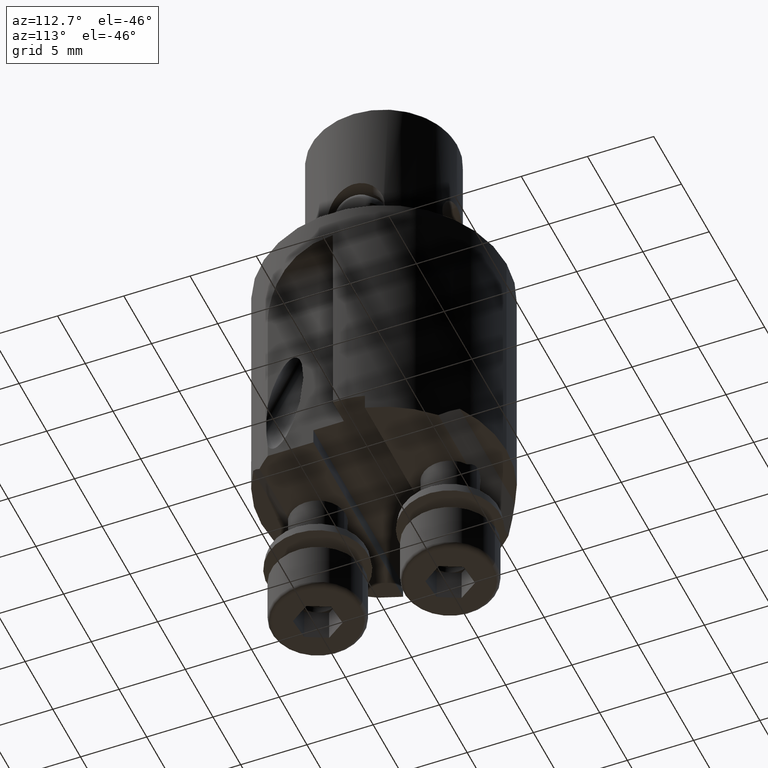
[diagram: clean part render]
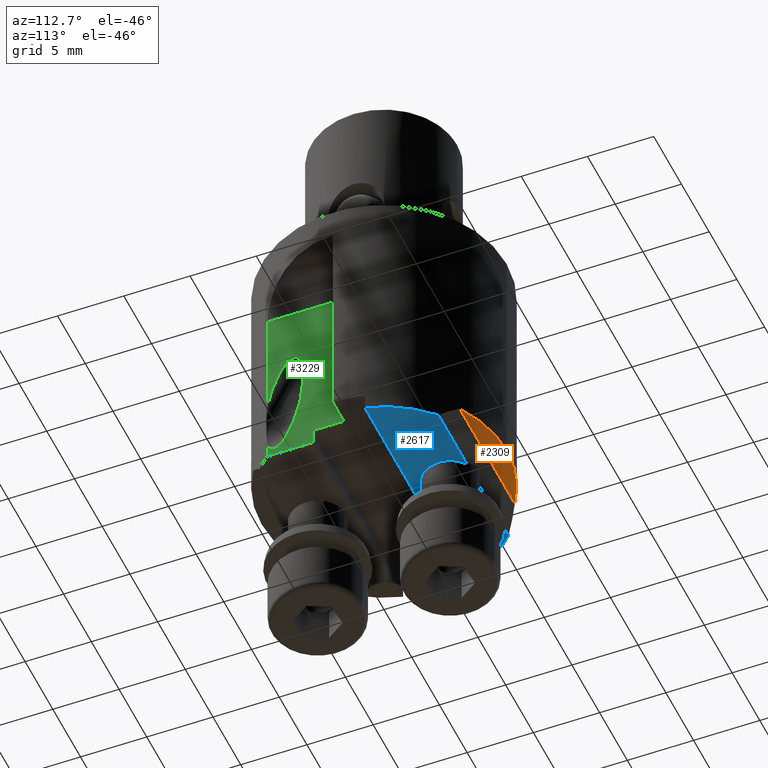
[diagram: same view with three faces highlighted in distinct colors, each labeled with its STEP entity id]
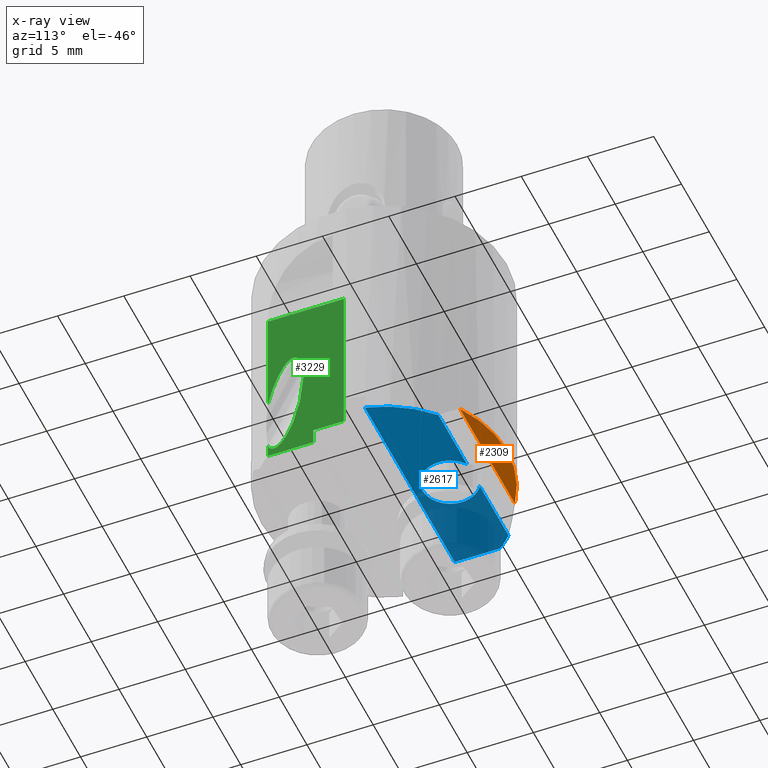
[diagram: x-ray of the same camera — body ghosted, the three highlighted faces saturated]
A machine part, auxiliary view with three faces highlighted in distinct colors.
The next image is the same camera in x-ray (body ghosted, the three faces saturated) — at least one of them is partly hidden behind the body in this view.
Their STEP definitions:

[orange] entity #2309 — the highlighted planar face has unit normal (0, -0, 1).
#1413=EDGE_CURVE('NONE',#2949,#2329,#3600,.T.);
#1419=EDGE_CURVE('NONE',#3137,#2949,#3606,.T.);
#1505=EDGE_CURVE('NONE',#2329,#3137,#3708,.T.);
#2309=ADVANCED_FACE('NONE',(#4610),#4611,.F.);
#2329=VERTEX_POINT('NONE',#4632);
#2949=VERTEX_POINT('NONE',#5317);
#3137=VERTEX_POINT('NONE',#5523);
#3600=LINE('',#6174,#6175);
#3606=CIRCLE('',#6183,9.25);
#3708=CIRCLE('',#6320,9.25);
#4610=FACE_OUTER_BOUND('',#7754,.T.);
#4611=PLANE('',#7755);
#4632=CARTESIAN_POINT('',(-4.9721725633771,7.8,-19.2));
#5317=CARTESIAN_POINT('',(4.9721725633771,7.8,-19.2));
#5523=CARTESIAN_POINT('',(0.0,9.25,-19.2));
#6174=CARTESIAN_POINT('',(9.25,7.8,-19.2));
#6175=VECTOR('',#9785,1000.0);
#6183=AXIS2_PLACEMENT_3D('',#9789,#9790,#9791);
#6320=AXIS2_PLACEMENT_3D('',#9919,#9920,#9921);
#7754=EDGE_LOOP('',(#11093,#11094,#11095));
#7755=AXIS2_PLACEMENT_3D('',#11096,#11097,#11098);
#9785=DIRECTION('',(-1.0,0.0,0.0));
#9789=CARTESIAN_POINT('',(0.0,0.0,-19.2));
#9790=DIRECTION('',(0.0,7.50150692314295E-016,-1.0));
#9791=DIRECTION('',(0.0,1.0,7.50150692314295E-016));
#9919=CARTESIAN_POINT('',(0.0,0.0,-19.2));
#9920=DIRECTION('',(-6.74199414251387E-032,7.50150692314295E-016,-1.0));
#9921=DIRECTION('',(8.88178419700125E-016,1.0,7.50150692314295E-016));
#11093=ORIENTED_EDGE('',*,*,#1505,.T.);
#11094=ORIENTED_EDGE('',*,*,#1419,.T.);
#11095=ORIENTED_EDGE('',*,*,#1413,.T.);
#11096=CARTESIAN_POINT('',(9.25,7.8,-19.2));
#11097=DIRECTION('',(0.0,-8.26058798084194E-016,1.0));
#11098=DIRECTION('',(0.0,1.0,8.26058798084194E-016));

[blue] entity #2617 — the highlighted planar face has unit normal (0, -0, 1).
#1193=VERTEX_POINT('NONE',#3354);
#1469=VERTEX_POINT('NONE',#3669);
#1497=VERTEX_POINT('NONE',#3699);
#1771=EDGE_CURVE('NONE',#1987,#2179,#4006,.T.);
#1987=VERTEX_POINT('NONE',#4245);
#2171=EDGE_CURVE('NONE',#2693,#3007,#4454,.T.);
#2179=VERTEX_POINT('NONE',#4464);
#2271=EDGE_CURVE('NONE',#1193,#1497,#4565,.T.);
#2383=VERTEX_POINT('NONE',#4691);
#2581=EDGE_CURVE('NONE',#1987,#1497,#4913,.T.);
#2617=ADVANCED_FACE('NONE',(#4952),#4953,.F.);
#2693=VERTEX_POINT('NONE',#5039);
#2835=EDGE_CURVE('NONE',#2693,#1469,#5193,.T.);
#2927=EDGE_CURVE('NONE',#3007,#2383,#5294,.T.);
#2965=EDGE_CURVE('NONE',#1469,#1193,#5336,.T.);
#2967=EDGE_CURVE('NONE',#2179,#2383,#5338,.T.);
#3007=VERTEX_POINT('NONE',#5384);
#3354=CARTESIAN_POINT('',(-7.25,5.74456264653802,-20.7));
#3669=CARTESIAN_POINT('',(-6.32488755250512,6.74968869268544,-20.7));
#3699=CARTESIAN_POINT('',(-7.25,2.3,-20.7));
#4006=CIRCLE('',#6815,9.25);
#4245=CARTESIAN_POINT('',(8.95949217310892,2.3,-20.7));
#4454=CIRCLE('',#7504,2.1);
#4464=CARTESIAN_POINT('',(6.32488755250512,6.74968869268544,-20.7));
#4565=LINE('',#7681,#7682);
#4691=CARTESIAN_POINT('',(1.16128785350089,6.74968869268544,-20.7));
#4913=LINE('',#8285,#8286);
#4952=FACE_OUTER_BOUND('',#8346,.T.);
#4953=PLANE('',#8347);
#5039=CARTESIAN_POINT('',(-1.16128785350089,6.74968869268544,-20.7));
#5193=LINE('',#8726,#8727);
#5294=CIRCLE('',#8865,2.1);
#5336=CIRCLE('',#8947,9.25);
#5338=LINE('',#8950,#8951);
#5384=CARTESIAN_POINT('',(0.0,2.9,-20.7));
#6815=AXIS2_PLACEMENT_3D('',#10326,#10327,#10328);
#7504=AXIS2_PLACEMENT_3D('',#10891,#10892,#10893);
#7681=CARTESIAN_POINT('',(-7.25,0.0,-20.7));
#7682=VECTOR('',#11026,1000.0);
#8285=CARTESIAN_POINT('',(9.25,2.3,-20.7));
#8286=VECTOR('',#11473,1000.0);
#8346=EDGE_LOOP('',(#11507,#11508,#11509,#11510,#11511,#11512,#11513,#11514));
#8347=AXIS2_PLACEMENT_3D('',#11515,#11516,#11517);
#8726=CARTESIAN_POINT('',(9.25,6.74968869268544,-20.7));
#8727=VECTOR('',#11804,1000.0);
#8865=AXIS2_PLACEMENT_3D('',#11916,#11917,#11918);
#8947=AXIS2_PLACEMENT_3D('',#11966,#11967,#11968);
#8950=CARTESIAN_POINT('',(9.25,6.74968869268544,-20.7));
#8951=VECTOR('',#11969,1000.0);
#10326=CARTESIAN_POINT('',(0.0,0.0,-20.7));
#10327=DIRECTION('',(0.0,-0.0,1.0));
#10328=DIRECTION('',(0.0,1.0,0.0));
#10891=CARTESIAN_POINT('',(0.0,5.0,-20.7));
#10892=DIRECTION('',(0.0,-0.0,1.0));
#10893=DIRECTION('',(0.0,1.0,0.0));
#11026=DIRECTION('',(0.0,-1.0,0.0));
#11473=DIRECTION('',(-1.0,0.0,0.0));
#11507=ORIENTED_EDGE('',*,*,#2835,.F.);
#11508=ORIENTED_EDGE('',*,*,#2171,.T.);
#11509=ORIENTED_EDGE('',*,*,#2927,.T.);
#11510=ORIENTED_EDGE('',*,*,#2967,.F.);
#11511=ORIENTED_EDGE('',*,*,#1771,.F.);
#11512=ORIENTED_EDGE('',*,*,#2581,.T.);
#11513=ORIENTED_EDGE('',*,*,#2271,.F.);
#11514=ORIENTED_EDGE('',*,*,#2965,.F.);
#11515=CARTESIAN_POINT('',(0.0,0.0,-20.7));
#11516=DIRECTION('',(0.0,-0.0,1.0));
#11517=DIRECTION('',(0.0,1.0,0.0));
#11804=DIRECTION('',(-1.0,0.0,0.0));
#11916=CARTESIAN_POINT('',(0.0,5.0,-20.7));
#11917=DIRECTION('',(0.0,-0.0,1.0));
#11918=DIRECTION('',(0.0,1.0,0.0));
#11966=CARTESIAN_POINT('',(0.0,0.0,-20.7));
#11967=DIRECTION('',(0.0,-0.0,1.0));
#11968=DIRECTION('',(0.0,1.0,0.0));
#11969=DIRECTION('',(-1.0,0.0,0.0));

[green] entity #3229 — the highlighted planar face has unit normal (-1, 0, 0).
#1197=EDGE_CURVE('NONE',#2121,#2409,#3358,.T.);
#1267=EDGE_CURVE('NONE',#3165,#1397,#3437,.T.);
#1367=EDGE_CURVE('NONE',#2215,#1651,#3550,.T.);
#1397=VERTEX_POINT('NONE',#3583);
#1421=EDGE_CURVE('NONE',#2119,#2453,#3608,.T.);
#1651=VERTEX_POINT('NONE',#3871);
#1759=EDGE_CURVE('NONE',#2121,#3125,#3994,.T.);
#1761=VERTEX_POINT('NONE',#3996);
#1857=EDGE_CURVE('NONE',#1397,#2119,#4101,.T.);
#2119=VERTEX_POINT('NONE',#4394);
#2121=VERTEX_POINT('NONE',#4396);
#2163=EDGE_CURVE('NONE',#3125,#1761,#4446,.T.);
#2215=VERTEX_POINT('NONE',#4505);
#2249=EDGE_CURVE('NONE',#2215,#2453,#4540,.T.);
#2409=VERTEX_POINT('NONE',#4720);
#2453=VERTEX_POINT('NONE',#4770);
#2613=EDGE_CURVE('NONE',#3165,#2409,#4948,.T.);
#3125=VERTEX_POINT('NONE',#5511);
#3127=EDGE_CURVE('NONE',#1761,#1651,#5513,.T.);
#3165=VERTEX_POINT('NONE',#5552);
#3229=ADVANCED_FACE('NONE',(#5627),#5628,.F.);
#3358=LINE('',#5794,#5795);
#3437=(B_SPLINE_CURVE(3,(#5897,#5898,#5899,#5900),.UNSPECIFIED.,.F.,.F.)B_SPLINE_CURVE_WITH_KNOTS((4,4),(5.90193067152309,6.33907031222086),.UNSPECIFIED.)RATIONAL_B_SPLINE_CURVE((1.0,0.984139039155671,0.984139039155671,1.0))BOUNDED_CURVE()REPRESENTATION_ITEM('')GEOMETRIC_REPRESENTATION_ITEM()CURVE());
#3550=LINE('',#6102,#6103);
#3583=CARTESIAN_POINT('',(7.25,-5.27664486981296,-20.1265382110306));
#3608=(B_SPLINE_CURVE(3,(#6187,#6188,#6189,#6190),.UNSPECIFIED.,.F.,.F.)B_SPLINE_CURVE_WITH_KNOTS((4,4),(3.19747765863106,4.69650430316486),.UNSPECIFIED.)RATIONAL_B_SPLINE_CURVE((1.0,0.821347013743391,0.821347013743391,1.0))BOUNDED_CURVE()REPRESENTATION_ITEM('')GEOMETRIC_REPRESENTATION_ITEM()CURVE());
#3871=CARTESIAN_POINT('',(7.25,0.0,-7.2391201416245));
#3994=LINE('',#6796,#6797);
#3996=CARTESIAN_POINT('',(7.25,0.0,-19.5));
#4101=(B_SPLINE_CURVE(3,(#6966,#6967,#6968,#6969),.UNSPECIFIED.,.F.,.F.)B_SPLINE_CURVE_WITH_KNOTS((4,4),(0.0558850050412711,3.19747765863106),.UNSPECIFIED.)RATIONAL_B_SPLINE_CURVE((1.0,0.333333333333333,0.333333333333333,1.0))BOUNDED_CURVE()REPRESENTATION_ITEM('')GEOMETRIC_REPRESENTATION_ITEM()CURVE());
#4394=CARTESIAN_POINT('',(7.25,-3.78396073287238,-11.6500693217862));
#4396=CARTESIAN_POINT('',(7.25,-2.3,-20.7));
#4446=LINE('',#7490,#7491);
#4505=CARTESIAN_POINT('',(7.25,-5.74456264653802,-7.2391201416245));
#4540=LINE('',#7625,#7626);
#4720=CARTESIAN_POINT('',(7.25,-5.74456264653803,-20.7));
#4770=CARTESIAN_POINT('',(7.25,-5.74456264653802,-15.5843880897425));
#4948=LINE('',#8341,#8342);
#5511=CARTESIAN_POINT('',(7.25,-2.3,-19.5));
#5513=LINE('',#9195,#9196);
#5552=CARTESIAN_POINT('',(7.25,-5.74456264653802,-19.7280013459606));
#5627=FACE_OUTER_BOUND('',#9360,.T.);
#5628=PLANE('',#9361);
#5794=CARTESIAN_POINT('',(7.25,0.0,-20.7));
#5795=VECTOR('',#9503,1000.0);
#5897=CARTESIAN_POINT('',(7.25,-5.74456264653802,-19.7280013459606));
#5898=CARTESIAN_POINT('',(7.25,-5.62183017943472,-19.9915515715371));
#5899=CARTESIAN_POINT('',(7.25,-5.46334384159418,-20.1265382110306));
#5900=CARTESIAN_POINT('',(7.25,-5.27664486981296,-20.1265382110306));
#6102=CARTESIAN_POINT('',(7.25,-9.25,-7.2391201416245));
#6103=VECTOR('',#9736,1000.0);
#6187=CARTESIAN_POINT('',(7.25,-3.78396073287238,-11.6500693217862));
#6188=CARTESIAN_POINT('',(7.25,-4.48682623145264,-11.6500693217862));
#6189=CARTESIAN_POINT('',(7.25,-5.28251180683852,-13.2467630059109));
#6190=CARTESIAN_POINT('',(7.25,-5.74456264653802,-15.5843880897425));
#6796=CARTESIAN_POINT('',(7.25,-2.3,-22.2391201416245));
#6797=VECTOR('',#10320,1000.0);
#6966=CARTESIAN_POINT('',(7.25,-5.27664486981296,-20.1265382110306));
#6967=CARTESIAN_POINT('',(7.25,-2.73454342891838,-20.1265382110306));
#6968=CARTESIAN_POINT('',(7.25,-1.2418592919778,-11.6500693217861));
#6969=CARTESIAN_POINT('',(7.25,-3.78396073287238,-11.6500693217862));
#7490=CARTESIAN_POINT('',(7.25,-9.25,-19.5));
#7491=VECTOR('',#10883,1000.0);
#7625=CARTESIAN_POINT('',(7.25,-5.74456264653802,14.0011979206049));
#7626=VECTOR('',#10992,1000.0);
#8341=CARTESIAN_POINT('',(7.25,-5.74456264653802,14.0011979206049));
#8342=VECTOR('',#11505,1000.0);
#9195=CARTESIAN_POINT('',(7.25,0.0,-22.2391201416245));
#9196=VECTOR('',#12173,1000.0);
#9360=EDGE_LOOP('',(#12298,#12299,#12300,#12301,#12302,#12303,#12304,#12305,#12306,#12307));
#9361=AXIS2_PLACEMENT_3D('',#12308,#12309,#12310);
#9503=DIRECTION('',(0.0,-1.0,0.0));
#9736=DIRECTION('',(0.0,1.0,0.0));
#10320=DIRECTION('',(1.73472347597681E-016,3.61400724161835E-016,1.0));
#10883=DIRECTION('',(0.0,1.0,0.0));
#10992=DIRECTION('',(0.0,0.0,-1.0));
#11505=DIRECTION('',(0.0,0.0,-1.0));
#12173=DIRECTION('',(1.73472347597681E-016,0.0,1.0));
#12298=ORIENTED_EDGE('',*,*,#1267,.F.);
#12299=ORIENTED_EDGE('',*,*,#2613,.T.);
#12300=ORIENTED_EDGE('',*,*,#1197,.F.);
#12301=ORIENTED_EDGE('',*,*,#1759,.T.);
#12302=ORIENTED_EDGE('',*,*,#2163,.T.);
#12303=ORIENTED_EDGE('',*,*,#3127,.T.);
#12304=ORIENTED_EDGE('',*,*,#1367,.F.);
#12305=ORIENTED_EDGE('',*,*,#2249,.T.);
#12306=ORIENTED_EDGE('',*,*,#1421,.F.);
#12307=ORIENTED_EDGE('',*,*,#1857,.F.);
#12308=CARTESIAN_POINT('',(7.25,-9.25,-22.2391201416245));
#12309=DIRECTION('',(-1.0,3.00926553810506E-032,5.22024357439882E-048));
#12310=DIRECTION('',(0.0,1.73472347597681E-016,-1.0));